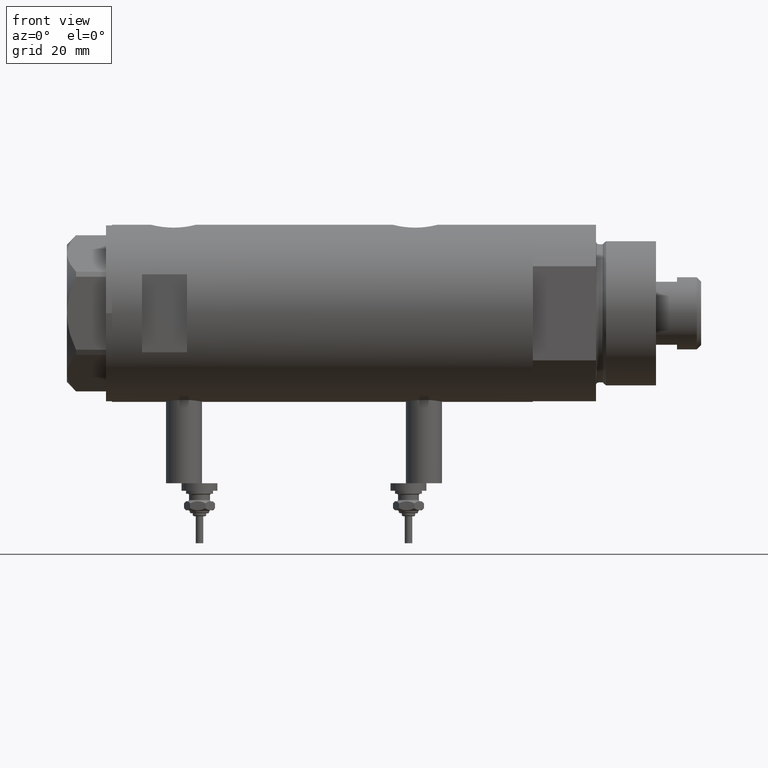
[diagram: clean part render]
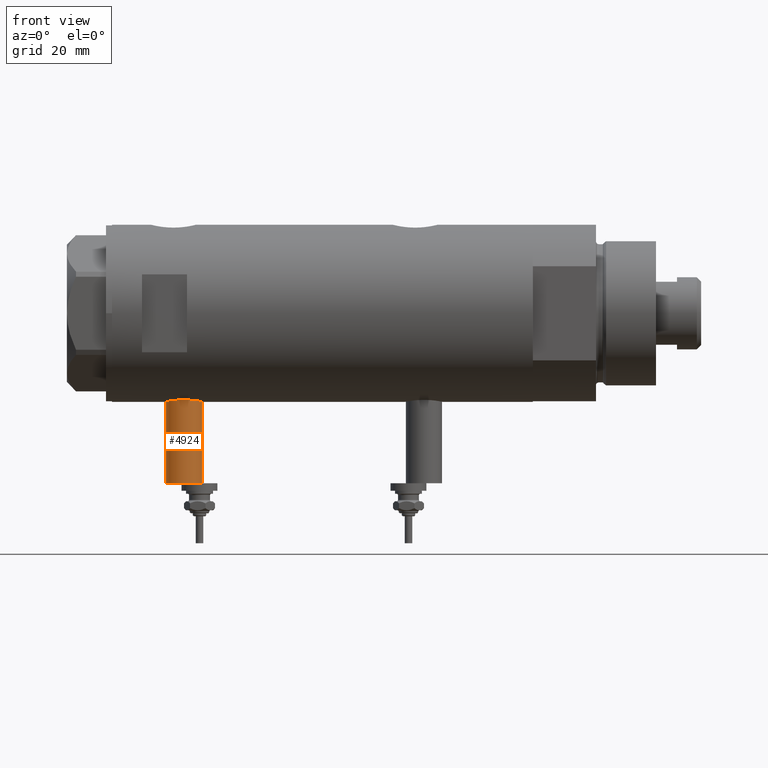
[diagram: same view with one face highlighted and labeled with its STEP entity id]
A machine part, front view. The second image highlights one B-rep face of the part: STEP entity #4924.
In plain terms, the highlighted cylindrical surface (edge-blend (fillet) strip) has radius 6 mm, axis along (0, 0, 1).
Its self-contained STEP definition (entity closure, byte-faithful):
#103 = DIRECTION ( 'NONE',  ( 0.000000000000000000, 0.000000000000000000, -1.000000000000000000 ) ) ;
#327 = DIRECTION ( 'NONE',  ( 1.000000000000000000, -0.000000000000000000, -0.000000000000000000 ) ) ;
#474 = CARTESIAN_POINT ( 'NONE',  ( -28.30000000000000071, 0.000000000000000000, 46.09999999999999432 ) ) ;
#548 = CARTESIAN_POINT ( 'NONE',  ( -56.60000000000000142, 0.000000000000000000, 46.09999999999999432 ) ) ;
#752 = EDGE_CURVE ( 'NONE', #1830, #2790, #1911, .T. ) ;
#975 = EDGE_CURVE ( 'NONE', #3817, #3984, #1326, .T. ) ;
#1039 = AXIS2_PLACEMENT_3D ( 'NONE', #4855, #4928, #4394 ) ;
#1107 = CARTESIAN_POINT ( 'NONE',  ( -56.60000000000000142, 0.000000000000000000, 40.09999999999999432 ) ) ;
#1132 = VECTOR ( 'NONE', #3133, 1000.000000000000000 ) ;
#1183 = ORIENTED_EDGE ( 'NONE', *, *, #752, .F. ) ;
#1326 = CIRCLE ( 'NONE', #1894, 5.999999999999998224 ) ;
#1365 = CARTESIAN_POINT ( 'NONE',  ( -56.60000000000000142, 7.347880794884112834E-16, 52.09999999999999432 ) ) ;
#1830 = VERTEX_POINT ( 'NONE', #1107 ) ;
#1894 = AXIS2_PLACEMENT_3D ( 'NONE', #474, #2282, #4474 ) ;
#1911 = CIRCLE ( 'NONE', #1039, 5.999999999999998224 ) ;
#2142 = EDGE_CURVE ( 'NONE', #1830, #3817, #3513, .T. ) ;
#2282 = DIRECTION ( 'NONE',  ( -1.000000000000000000, 0.000000000000000000, 0.000000000000000000 ) ) ;
#2573 = CARTESIAN_POINT ( 'NONE',  ( -56.60000000000000142, 0.000000000000000000, 40.09999999999999432 ) ) ;
#2790 = VERTEX_POINT ( 'NONE', #3886 ) ;
#3133 = DIRECTION ( 'NONE',  ( 1.000000000000000000, -0.000000000000000000, -0.000000000000000000 ) ) ;
#3281 = CARTESIAN_POINT ( 'NONE',  ( -28.30000000000000071, 7.347880794884108889E-16, 52.09999999999999432 ) ) ;
#3290 = FACE_OUTER_BOUND ( 'NONE', #4912, .T. ) ;
#3513 = LINE ( 'NONE', #2573, #4296 ) ;
#3809 = ORIENTED_EDGE ( 'NONE', *, *, #975, .T. ) ;
#3817 = VERTEX_POINT ( 'NONE', #5771 ) ;
#3886 = CARTESIAN_POINT ( 'NONE',  ( -56.60000000000000142, 7.347880794884108889E-16, 52.09999999999999432 ) ) ;
#3984 = VERTEX_POINT ( 'NONE', #3281 ) ;
#4209 = AXIS2_PLACEMENT_3D ( 'NONE', #548, #4645, #103 ) ;
#4221 = CYLINDRICAL_SURFACE ( 'NONE', #4209, 5.999999999999998224 ) ;
#4296 = VECTOR ( 'NONE', #327, 1000.000000000000000 ) ;
#4394 = DIRECTION ( 'NONE',  ( 0.000000000000000000, 0.000000000000000000, 1.000000000000000000 ) ) ;
#4471 = ORIENTED_EDGE ( 'NONE', *, *, #5307, .F. ) ;
#4474 = DIRECTION ( 'NONE',  ( 0.000000000000000000, 0.000000000000000000, 1.000000000000000000 ) ) ;
#4645 = DIRECTION ( 'NONE',  ( 1.000000000000000000, -0.000000000000000000, -0.000000000000000000 ) ) ;
#4648 = ORIENTED_EDGE ( 'NONE', *, *, #2142, .T. ) ;
#4855 = CARTESIAN_POINT ( 'NONE',  ( -56.60000000000000142, 0.000000000000000000, 46.09999999999999432 ) ) ;
#4912 = EDGE_LOOP ( 'NONE', ( #4471, #1183, #4648, #3809 ) ) ;
#4924 = ADVANCED_FACE ( 'NONE', ( #3290 ), #4221, .T. ) ;
#4928 = DIRECTION ( 'NONE',  ( -1.000000000000000000, 0.000000000000000000, 0.000000000000000000 ) ) ;
#4984 = LINE ( 'NONE', #1365, #1132 ) ;
#5307 = EDGE_CURVE ( 'NONE', #2790, #3984, #4984, .T. ) ;
#5771 = CARTESIAN_POINT ( 'NONE',  ( -28.30000000000000071, 0.000000000000000000, 40.09999999999999432 ) ) ;